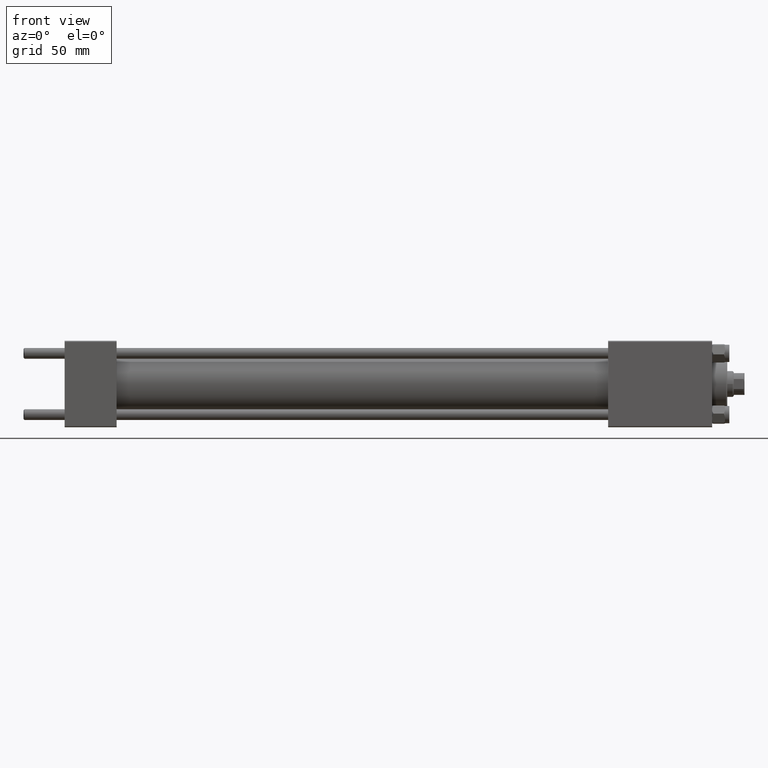
[diagram: clean part render]
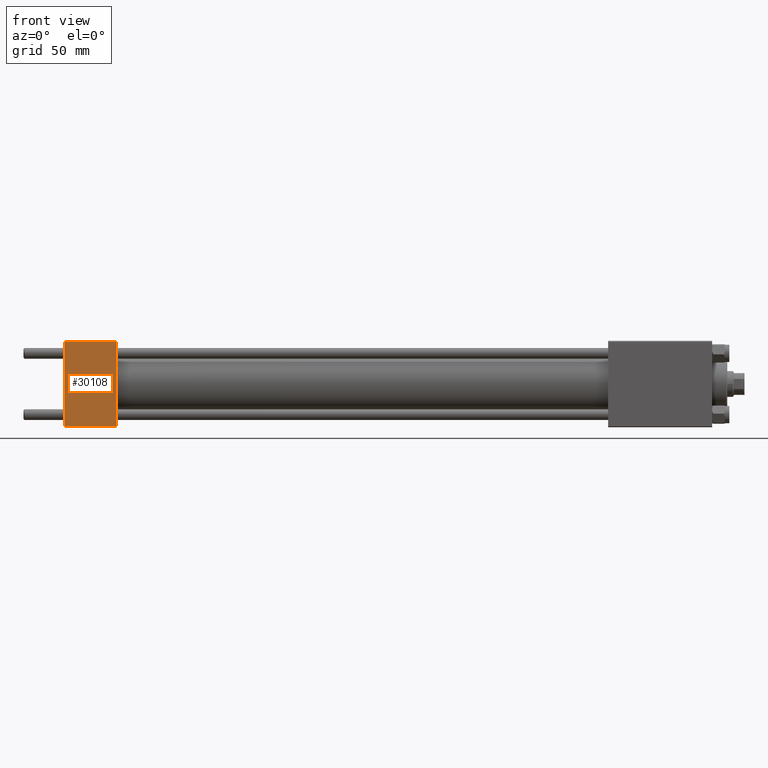
[diagram: same view with one face highlighted and labeled with its STEP entity id]
A machine part, front view. The second image highlights one B-rep face of the part: STEP entity #30108.
In plain terms, the highlighted planar face has unit normal (0, 1, 0).
Its self-contained STEP definition (entity closure, byte-faithful):
#881 = CARTESIAN_POINT ( 'NONE',  ( 24.00000000000000000, -20.00000000000000355, 19.49999999999998224 ) ) ;
#1627 = CARTESIAN_POINT ( 'NONE',  ( 24.00000000000000000, -20.00000000000000355, 19.49999999999998224 ) ) ;
#3982 = CARTESIAN_POINT ( 'NONE',  ( 24.00000000000000000, -20.00000000000000355, 19.99999999999998934 ) ) ;
#4580 = EDGE_CURVE ( 'NONE', #20888, #12167, #12032, .T. ) ;
#5271 = DIRECTION ( 'NONE',  ( 0.000000000000000000, -8.673617379884036705E-17, 1.000000000000000000 ) ) ;
#5767 = DIRECTION ( 'NONE',  ( -0.000000000000000000, 1.000000000000000000, 8.673617379884036705E-17 ) ) ;
#7807 = ORIENTED_EDGE ( 'NONE', *, *, #17223, .T. ) ;
#9389 = ORIENTED_EDGE ( 'NONE', *, *, #31360, .T. ) ;
#10892 = VECTOR ( 'NONE', #42570, 1000.000000000000000 ) ;
#11438 = LINE ( 'NONE', #18528, #25279 ) ;
#12032 = LINE ( 'NONE', #23669, #31437 ) ;
#12167 = VERTEX_POINT ( 'NONE', #15359 ) ;
#14778 = VERTEX_POINT ( 'NONE', #1627 ) ;
#15359 = CARTESIAN_POINT ( 'NONE',  ( 0.000000000000000000, -20.00000000000000000, -19.49999999999999645 ) ) ;
#15603 = ORIENTED_EDGE ( 'NONE', *, *, #4580, .T. ) ;
#15843 = LINE ( 'NONE', #3982, #18858 ) ;
#16658 = CARTESIAN_POINT ( 'NONE',  ( 24.00000000000000000, -20.00000000000000355, 19.99999999999998934 ) ) ;
#17223 = EDGE_CURVE ( 'NONE', #12167, #48217, #11438, .T. ) ;
#17847 = EDGE_CURVE ( 'NONE', #14778, #48217, #15843, .T. ) ;
#18528 = CARTESIAN_POINT ( 'NONE',  ( 24.00000000000000000, -20.00000000000000000, -19.49999999999999645 ) ) ;
#18858 = VECTOR ( 'NONE', #34303, 1000.000000000000000 ) ;
#20115 = DIRECTION ( 'NONE',  ( 0.000000000000000000, 8.673617379884036705E-17, -1.000000000000000000 ) ) ;
#20765 = CARTESIAN_POINT ( 'NONE',  ( 0.000000000000000000, -20.00000000000000355, 19.49999999999998224 ) ) ;
#20888 = VERTEX_POINT ( 'NONE', #20765 ) ;
#20934 = PLANE ( 'NONE',  #49882 ) ;
#23669 = CARTESIAN_POINT ( 'NONE',  ( 0.000000000000000000, -20.00000000000000355, 19.99999999999998934 ) ) ;
#25279 = VECTOR ( 'NONE', #37466, 1000.000000000000000 ) ;
#29258 = FACE_OUTER_BOUND ( 'NONE', #49297, .T. ) ;
#30108 = ADVANCED_FACE ( 'NONE', ( #29258 ), #20934, .F. ) ;
#31173 = CARTESIAN_POINT ( 'NONE',  ( 24.00000000000000000, -20.00000000000000000, -19.49999999999999645 ) ) ;
#31360 = EDGE_CURVE ( 'NONE', #14778, #20888, #46845, .T. ) ;
#31437 = VECTOR ( 'NONE', #20115, 1000.000000000000000 ) ;
#34303 = DIRECTION ( 'NONE',  ( 0.000000000000000000, 8.673617379884036705E-17, -1.000000000000000000 ) ) ;
#37466 = DIRECTION ( 'NONE',  ( 1.000000000000000000, 0.000000000000000000, 0.000000000000000000 ) ) ;
#42171 = ORIENTED_EDGE ( 'NONE', *, *, #17847, .F. ) ;
#42570 = DIRECTION ( 'NONE',  ( -1.000000000000000000, 0.000000000000000000, 0.000000000000000000 ) ) ;
#46845 = LINE ( 'NONE', #881, #10892 ) ;
#48217 = VERTEX_POINT ( 'NONE', #31173 ) ;
#49297 = EDGE_LOOP ( 'NONE', ( #15603, #7807, #42171, #9389 ) ) ;
#49882 = AXIS2_PLACEMENT_3D ( 'NONE', #16658, #5767, #5271 ) ;